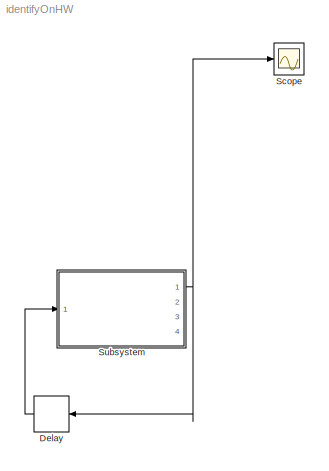
MODEL identifyOnHW
KIND model
BLOCK [Delay] Delay
  DelayLength = 1
  InitialCondition = 0
  InputPortMap = u0
  Ports = [1, 1]
  SID = 103
BLOCK [Scope] Scope
  DataFormat = StructureWithTime
  Decimation = 1
  Floating = off
  Grid = on
  LimitDataPoints = off
  MaxDataPoints = 5000
  NumInputPorts = 1
  Ports = [1]
  SID = 107
  SampleInput = off
  SampleTime = -1
  SaveName = ScopeData
  SaveToWorkspace = off
  TickLabels = OneTimeTick
  TimeRange = auto
  YMax = 1125.00000
  YMin = -125.00000
  ZoomMode = on
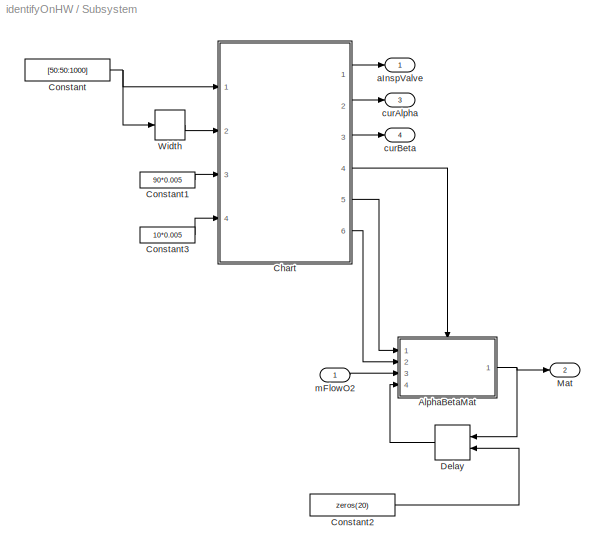
BLOCK [SubSystem] Subsystem
  FunctionWithSeparateData = off
  MaskHideContents = off
  MinAlgLoopOccurrences = off
  Opaque = off
  Ports = [1, 4]
  PropExecContextOutsideSubsystem = off
  RTWSystemCode = Auto
  RequestExecContextInheritance = off
  SID = 66
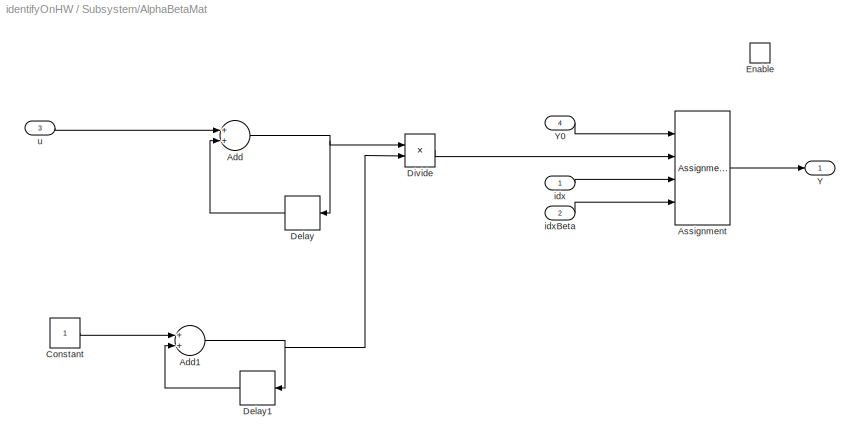
BLOCK [SubSystem] Subsystem/AlphaBetaMat
  FunctionWithSeparateData = off
  MaskHideContents = off
  MinAlgLoopOccurrences = off
  Opaque = off
  Ports = [4, 1, 1]
  PropExecContextOutsideSubsystem = off
  RTWSystemCode = Auto
  RequestExecContextInheritance = off
  SID = 77
BLOCK [Sum] Subsystem/AlphaBetaMat/Add
  InputSameDT = off
  OutDataTypeStr = Inherit: Inherit via internal rule
  Ports = [2, 1]
  SID = 96
  SaturateOnIntegerOverflow = off
BLOCK [Sum] Subsystem/AlphaBetaMat/Add1
  InputSameDT = off
  OutDataTypeStr = Inherit: Inherit via internal rule
  Ports = [2, 1]
  SID = 99
  SaturateOnIntegerOverflow = off
BLOCK [Assignment] Subsystem/AlphaBetaMat/Assignment
  DiagnosticForDimensions = Warning
  IndexOptions = Index vector (port),Index vector (port)
  Indices = 1,1
  NumberOfDimensions = 2
  OutputSizes = 1,1
  Ports = [4, 1]
  SID = 80
BLOCK [Constant] Subsystem/AlphaBetaMat/Constant
  SID = 102
BLOCK [Delay] Subsystem/AlphaBetaMat/Delay
  DelayLength = 1
  InputPortMap = u0
  Ports = [1, 1]
  SID = 97
BLOCK [Delay] Subsystem/AlphaBetaMat/Delay1
  DelayLength = 1
  InitialCondition = 0
  InputPortMap = u0
  Ports = [1, 1]
  SID = 98
BLOCK [Product] Subsystem/AlphaBetaMat/Divide
  InputSameDT = off
  Inputs = */
  OutDataTypeStr = Inherit: Inherit via internal rule
  Ports = [2, 1]
  SID = 101
BLOCK [EnablePort] Subsystem/AlphaBetaMat/Enable
  Ports = []
  SID = 85
  StatesWhenEnabling = reset
BLOCK [Outport] Subsystem/AlphaBetaMat/Y
  IconDisplay = Port number
  SID = 79
BLOCK [Inport] Subsystem/AlphaBetaMat/Y0
  IconDisplay = Port number
  Port = 4
  SID = 95
BLOCK [Inport] Subsystem/AlphaBetaMat/idx
  IconDisplay = Port number
  SID = 78
BLOCK [Inport] Subsystem/AlphaBetaMat/idxBeta
  IconDisplay = Port number
  Port = 2
  SID = 81
BLOCK [Inport] Subsystem/AlphaBetaMat/u
  IconDisplay = Port number
  Port = 3
  SID = 84
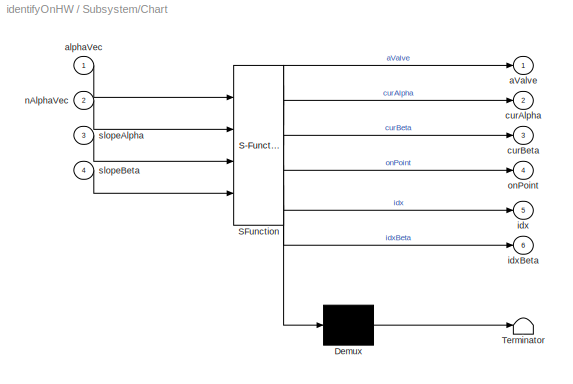
BLOCK [SubSystem] Subsystem/Chart
  ErrorFcn = Stateflow.Translate.translate
  FunctionWithSeparateData = off
  MaskDescription = Stateflow diagram
  MaskDisplay = plot(sf('Private','sfblk','xIcon'),sf('Private','sfblk','yIcon'));text(0.5,0,sf('Private', 'sfblk', 'tIcon'),'HorizontalAl','Center','VerticalAl','Bottom');
  MaskHideContents = off
  MaskIconFrame = off
  MaskIconOpaque = off
  MaskIconRotate = none
  MaskIconUnits = normalized
  MaskPortRotate = default
  MaskSelfModifiable = on
  MaskType = Stateflow
  MinAlgLoopOccurrences = off
  Opaque = off
  PermitHierarchicalResolution = ParametersOnly
  Ports = [4, 6]
  PropExecContextOutsideSubsystem = off
  RTWSystemCode = Auto
  RequestExecContextInheritance = off
  SFBlockType = Chart
  SID = 2
  TreatAsAtomicUnit = on
BLOCK [Demux] Subsystem/Chart/ Demux 
  Outputs = 1
  Ports = [1, 1]
  SID = 2::90
BLOCK [S-Function] Subsystem/Chart/ SFunction 
  EnableBusSupport = on
  FunctionName = sf_sfun
  PortCounts = [4 7]
  Ports = [4, 7]
  SFunctionDeploymentMode = off
  SID = 2::89
  Tag = Stateflow S-Function identifyOnHW 3
BLOCK [Terminator] Subsystem/Chart/ Terminator 
  SID = 2::91
BLOCK [Outport] Subsystem/Chart/aValve
  IconDisplay = Port number
  SID = 2::99
BLOCK [Inport] Subsystem/Chart/alphaVec
  IconDisplay = Port number
  SID = 2::93
BLOCK [Outport] Subsystem/Chart/curAlpha
  IconDisplay = Port number
  Port = 2
  SID = 2::95
BLOCK [Outport] Subsystem/Chart/curBeta
  IconDisplay = Port number
  Port = 3
  SID = 2::101
BLOCK [Outport] Subsystem/Chart/idx
  IconDisplay = Port number
  Port = 5
  SID = 2::96
BLOCK [Outport] Subsystem/Chart/idxBeta
  IconDisplay = Port number
  Port = 6
  SID = 2::103
BLOCK [Inport] Subsystem/Chart/nAlphaVec
  IconDisplay = Port number
  Port = 2
  SID = 2::94
BLOCK [Outport] Subsystem/Chart/onPoint
  IconDisplay = Port number
  Port = 4
  SID = 2::104
BLOCK [Inport] Subsystem/Chart/slopeAlpha
  IconDisplay = Port number
  Port = 3
  SID = 2::98
BLOCK [Inport] Subsystem/Chart/slopeBeta
  IconDisplay = Port number
  Port = 4
  SID = 2::100
BLOCK [Constant] Subsystem/Constant
  SID = 1
  Value = [50:50:1000]
BLOCK [Constant] Subsystem/Constant1
  SID = 70
  Value = 90*0.005
BLOCK [Constant] Subsystem/Constant2
  SID = 83
  Value = zeros(20)
BLOCK [Constant] Subsystem/Constant3
  SID = 71
  Value = 10*0.005
BLOCK [Delay] Subsystem/Delay
  DelayLength = 1
  InitialConditionSource = Input port
  InputPortMap = u0,p4
  Ports = [2, 1]
  SID = 89
BLOCK [Outport] Subsystem/Mat
  IconDisplay = Port number
  InitialOutput = 0
  OutputWhenDisabled = reset
  Port = 2
  SID = 90
BLOCK [Width] Subsystem/Width
  SID = 3
BLOCK [Outport] Subsystem/aInspValve
  IconDisplay = Port number
  InitialOutput = 0
  OutputWhenDisabled = reset
  SID = 93
BLOCK [Outport] Subsystem/curAlpha
  IconDisplay = Port number
  InitialOutput = 0
  OutputWhenDisabled = reset
  Port = 3
  SID = 91
BLOCK [Outport] Subsystem/curBeta
  IconDisplay = Port number
  InitialOutput = 0
  OutputWhenDisabled = reset
  Port = 4
  SID = 92
BLOCK [Inport] Subsystem/mFlowO2
  IconDisplay = Port number
  SID = 94
LINE Delay:1 -> Subsystem:1
NET Subsystem/AlphaBetaMat/Add1:1 -> Subsystem/AlphaBetaMat/Delay1:1, Subsystem/AlphaBetaMat/Divide:2
NET Subsystem/AlphaBetaMat/Add:1 -> Subsystem/AlphaBetaMat/Delay:1, Subsystem/AlphaBetaMat/Divide:1
LINE Subsystem/AlphaBetaMat/Assignment:1 -> Subsystem/AlphaBetaMat/Y:1
LINE Subsystem/AlphaBetaMat/Constant:1 -> Subsystem/AlphaBetaMat/Add1:1
LINE Subsystem/AlphaBetaMat/Delay1:1 -> Subsystem/AlphaBetaMat/Add1:2
LINE Subsystem/AlphaBetaMat/Delay:1 -> Subsystem/AlphaBetaMat/Add:2
LINE Subsystem/AlphaBetaMat/Divide:1 -> Subsystem/AlphaBetaMat/Assignment:2
LINE Subsystem/AlphaBetaMat/Y0:1 -> Subsystem/AlphaBetaMat/Assignment:1
LINE Subsystem/AlphaBetaMat/idx:1 -> Subsystem/AlphaBetaMat/Assignment:3
LINE Subsystem/AlphaBetaMat/idxBeta:1 -> Subsystem/AlphaBetaMat/Assignment:4
LINE Subsystem/AlphaBetaMat/u:1 -> Subsystem/AlphaBetaMat/Add:1
NET Subsystem/AlphaBetaMat:1 -> Subsystem/Delay:1, Subsystem/Mat:1
LINE Subsystem/Chart/ Demux :1 -> Subsystem/Chart/ Terminator :1
LINE Subsystem/Chart/ SFunction :1 -> Subsystem/Chart/ Demux :1
LINE Subsystem/Chart/ SFunction :2 -> Subsystem/Chart/aValve:1
LINE Subsystem/Chart/ SFunction :3 -> Subsystem/Chart/curAlpha:1
LINE Subsystem/Chart/ SFunction :4 -> Subsystem/Chart/curBeta:1
LINE Subsystem/Chart/ SFunction :5 -> Subsystem/Chart/onPoint:1
LINE Subsystem/Chart/ SFunction :6 -> Subsystem/Chart/idx:1
LINE Subsystem/Chart/ SFunction :7 -> Subsystem/Chart/idxBeta:1
LINE Subsystem/Chart/alphaVec:1 -> Subsystem/Chart/ SFunction :1
LINE Subsystem/Chart/nAlphaVec:1 -> Subsystem/Chart/ SFunction :2
LINE Subsystem/Chart/slopeAlpha:1 -> Subsystem/Chart/ SFunction :3
LINE Subsystem/Chart/slopeBeta:1 -> Subsystem/Chart/ SFunction :4
LINE Subsystem/Chart:1 -> Subsystem/aInspValve:1
LINE Subsystem/Chart:2 -> Subsystem/curAlpha:1
LINE Subsystem/Chart:3 -> Subsystem/curBeta:1
LINE Subsystem/Chart:4 -> Subsystem/AlphaBetaMat:enable
LINE Subsystem/Chart:5 -> Subsystem/AlphaBetaMat:1
LINE Subsystem/Chart:6 -> Subsystem/AlphaBetaMat:2
LINE Subsystem/Constant1:1 -> Subsystem/Chart:3
LINE Subsystem/Constant2:1 -> Subsystem/Delay:2
LINE Subsystem/Constant3:1 -> Subsystem/Chart:4
NET Subsystem/Constant:1 -> Subsystem/Chart:1, Subsystem/Width:1
LINE Subsystem/Delay:1 -> Subsystem/AlphaBetaMat:4
LINE Subsystem/Width:1 -> Subsystem/Chart:2
LINE Subsystem/mFlowO2:1 -> Subsystem/AlphaBetaMat:3
NET Subsystem:1 -> Delay:1, Scope:1
note: NET lines group one-source signal fan-out (src -> all destinations, sorted); 1:1 wires keep LINE
CHART Subsystem/Chart states=7 transitions=11
  STATE_LABEL 'y'
  STATE_LABEL 'Initialize'
  STATE_LABEL 'RunAlphaValue\\nen:\\ncurAlpha=alphaVec(idx)'
  STATE_LABEL 'RampToAlpha\\nen:\\naValve=0;\\nen,du:\\naValve=min(curAlpha,aValve+slopeAlpha)'
  STATE_LABEL 'Done'
  STATE_LABEL 'RampToBeta\\nen:\\nidxBeta=max(idxBeta,1);\\ncurBeta=alphaVec(idxBeta);\\nen,du:\\naValve=max(curBeta,aValve-slopeBeta)'
  STATE_LABEL 'Hold\\nen:\\nonPoint=true;\\nex:\\nonPoint=false;'
